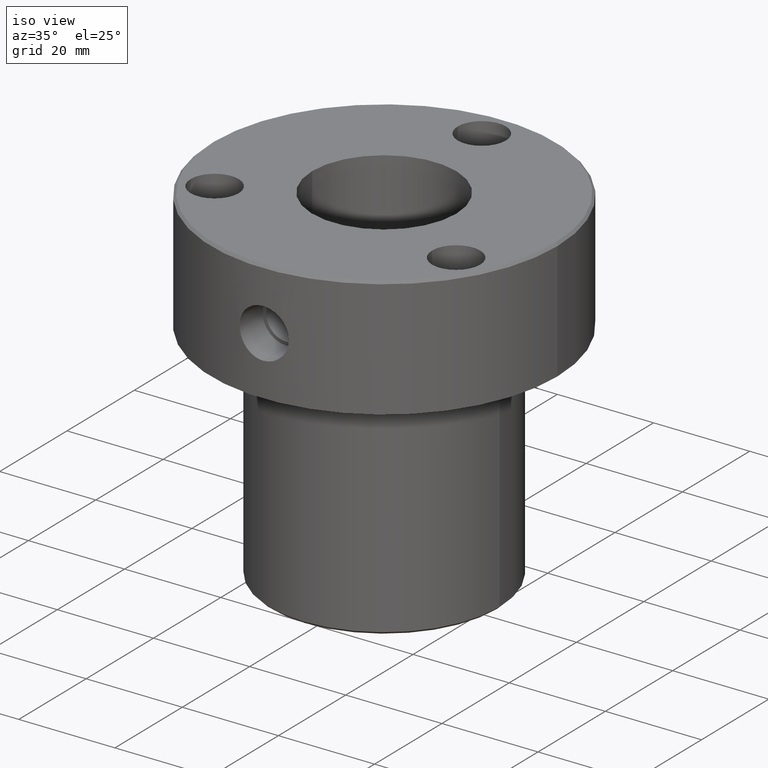
[diagram: clean part render]
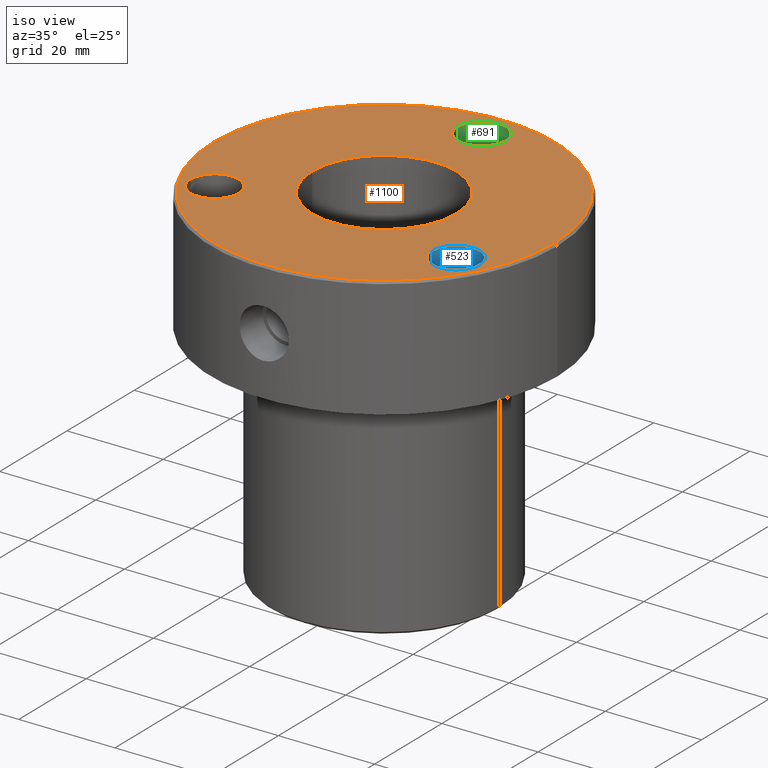
[diagram: same view with three faces highlighted in distinct colors, each labeled with its STEP entity id]
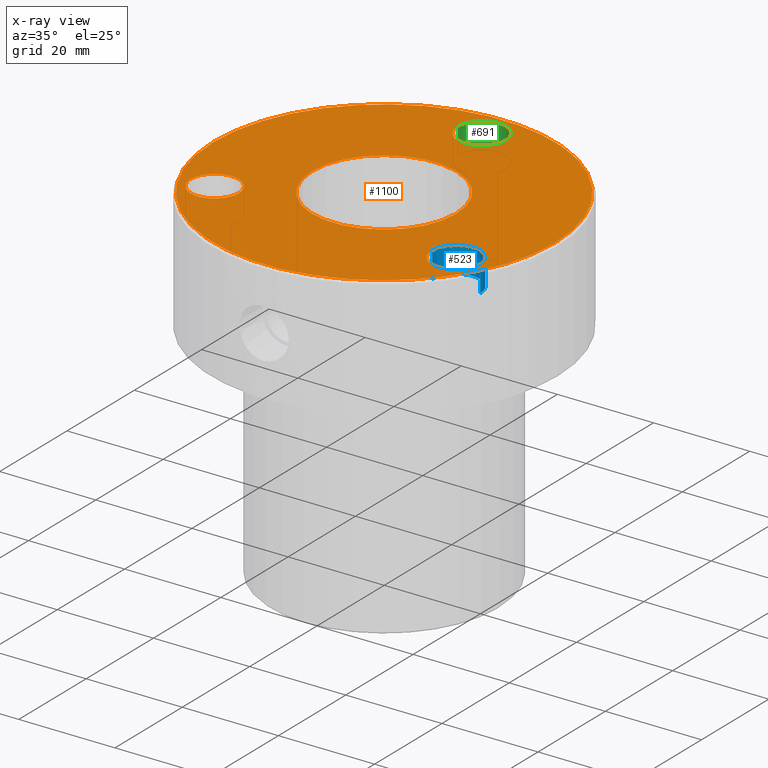
[diagram: x-ray of the same camera — body ghosted, the three highlighted faces saturated]
A machine part, iso view with three faces highlighted in distinct colors.
The next image is the same camera in x-ray (body ghosted, the three faces saturated) — at least one of them is partly hidden behind the body in this view.
Their STEP definitions:

[orange] entity #1100 — the highlighted planar face has unit normal (0, -0, 1).
#11 = AXIS2_PLACEMENT_3D ( 'NONE', #1087, #782, #1069 ) ;
#21 = DIRECTION ( 'NONE',  ( -0.000000000000000000, -0.000000000000000000, 1.000000000000000000 ) ) ;
#52 = ORIENTED_EDGE ( 'NONE', *, *, #95, .F. ) ;
#65 = CIRCLE ( 'NONE', #775, 5.000000000000000888 ) ;
#94 = EDGE_LOOP ( 'NONE', ( #359, #1245 ) ) ;
#95 = EDGE_CURVE ( 'NONE', #227, #241, #65, .T. ) ;
#105 = CARTESIAN_POINT ( 'NONE',  ( -25.11473670974875105, -14.49999999999994316, 0.000000000000000000 ) ) ;
#143 = CARTESIAN_POINT ( 'NONE',  ( -20.11473670974875105, -14.49999999999994316, 0.000000000000000000 ) ) ;
#145 = ORIENTED_EDGE ( 'NONE', *, *, #1178, .F. ) ;
#168 = VERTEX_POINT ( 'NONE', #555 ) ;
#172 = AXIS2_PLACEMENT_3D ( 'NONE', #513, #972, #410 ) ;
#183 = CARTESIAN_POINT ( 'NONE',  ( 0.000000000000000000, 0.000000000000000000, 0.000000000000000000 ) ) ;
#191 = CIRCLE ( 'NONE', #11, 15.00000000000000000 ) ;
#197 = CARTESIAN_POINT ( 'NONE',  ( 0.000000000000000000, 29.00000000000000000, 0.000000000000000000 ) ) ;
#215 = DIRECTION ( 'NONE',  ( -1.000000000000000000, 0.000000000000000000, 0.000000000000000000 ) ) ;
#218 = DIRECTION ( 'NONE',  ( -0.000000000000000000, -0.000000000000000000, 1.000000000000000000 ) ) ;
#227 = VERTEX_POINT ( 'NONE', #902 ) ;
#241 = VERTEX_POINT ( 'NONE', #1206 ) ;
#247 = CIRCLE ( 'NONE', #1143, 5.000000000000000888 ) ;
#248 = CARTESIAN_POINT ( 'NONE',  ( -30.11473670974875105, -14.49999999999994316, 0.000000000000000000 ) ) ;
#294 = AXIS2_PLACEMENT_3D ( 'NONE', #539, #727, #1218 ) ;
#306 = CARTESIAN_POINT ( 'NONE',  ( -5.000000000000000888, 29.00000000000000000, 0.000000000000000000 ) ) ;
#319 = CARTESIAN_POINT ( 'NONE',  ( 0.000000000000000000, 0.000000000000000000, 0.000000000000000000 ) ) ;
#325 = VERTEX_POINT ( 'NONE', #569 ) ;
#350 = CIRCLE ( 'NONE', #452, 15.00000000000000000 ) ;
#359 = ORIENTED_EDGE ( 'NONE', *, *, #819, .F. ) ;
#379 = ORIENTED_EDGE ( 'NONE', *, *, #925, .T. ) ;
#407 = DIRECTION ( 'NONE',  ( 1.000000000000000000, 0.000000000000000000, 0.000000000000000000 ) ) ;
#409 = CARTESIAN_POINT ( 'NONE',  ( 35.50000000000001421, 4.378112306951788646E-15, 0.000000000000000000 ) ) ;
#410 = DIRECTION ( 'NONE',  ( 1.000000000000000000, 0.000000000000000000, 0.000000000000000000 ) ) ;
#415 = AXIS2_PLACEMENT_3D ( 'NONE', #756, #457, #1138 ) ;
#425 = DIRECTION ( 'NONE',  ( 0.000000000000000000, -0.000000000000000000, 1.000000000000000000 ) ) ;
#452 = AXIS2_PLACEMENT_3D ( 'NONE', #886, #1056, #215 ) ;
#457 = DIRECTION ( 'NONE',  ( -0.000000000000000000, -0.000000000000000000, 1.000000000000000000 ) ) ;
#471 = VERTEX_POINT ( 'NONE', #409 ) ;
#479 = AXIS2_PLACEMENT_3D ( 'NONE', #197, #879, #1188 ) ;
#513 = CARTESIAN_POINT ( 'NONE',  ( 0.000000000000000000, 29.00000000000000000, 0.000000000000000000 ) ) ;
#535 = VERTEX_POINT ( 'NONE', #248 ) ;
#539 = CARTESIAN_POINT ( 'NONE',  ( 0.000000000000000000, 0.000000000000000000, 0.000000000000000000 ) ) ;
#555 = CARTESIAN_POINT ( 'NONE',  ( 5.000000000000000888, 29.00000000000000000, 0.000000000000000000 ) ) ;
#567 = EDGE_CURVE ( 'NONE', #1232, #471, #674, .T. ) ;
#569 = CARTESIAN_POINT ( 'NONE',  ( -15.00000000000000000, 0.000000000000000000, 0.000000000000000000 ) ) ;
#595 = DIRECTION ( 'NONE',  ( 1.000000000000000000, 0.000000000000000000, 0.000000000000000000 ) ) ;
#596 = CIRCLE ( 'NONE', #1164, 35.50000000000001421 ) ;
#603 = ORIENTED_EDGE ( 'NONE', *, *, #567, .T. ) ;
#622 = VERTEX_POINT ( 'NONE', #143 ) ;
#647 = EDGE_LOOP ( 'NONE', ( #799, #379 ) ) ;
#653 = CARTESIAN_POINT ( 'NONE',  ( 25.11473670974865868, -14.50000000000011013, 0.000000000000000000 ) ) ;
#674 = CIRCLE ( 'NONE', #294, 35.50000000000001421 ) ;
#677 = DIRECTION ( 'NONE',  ( -0.000000000000000000, -0.000000000000000000, 1.000000000000000000 ) ) ;
#689 = FACE_OUTER_BOUND ( 'NONE', #945, .T. ) ;
#696 = CARTESIAN_POINT ( 'NONE',  ( -25.11473670974875105, -14.49999999999994316, 0.000000000000000000 ) ) ;
#712 = CIRCLE ( 'NONE', #172, 5.000000000000000888 ) ;
#727 = DIRECTION ( 'NONE',  ( -0.000000000000000000, -0.000000000000000000, 1.000000000000000000 ) ) ;
#756 = CARTESIAN_POINT ( 'NONE',  ( 25.11473670974865868, -14.50000000000011013, 0.000000000000000000 ) ) ;
#774 = CIRCLE ( 'NONE', #415, 5.000000000000000888 ) ;
#775 = AXIS2_PLACEMENT_3D ( 'NONE', #653, #1254, #1053 ) ;
#778 = FACE_BOUND ( 'NONE', #647, .T. ) ;
#782 = DIRECTION ( 'NONE',  ( 0.000000000000000000, 0.000000000000000000, -1.000000000000000000 ) ) ;
#799 = ORIENTED_EDGE ( 'NONE', *, *, #1001, .T. ) ;
#804 = FACE_BOUND ( 'NONE', #94, .T. ) ;
#819 = EDGE_CURVE ( 'NONE', #168, #912, #1120, .T. ) ;
#845 = EDGE_LOOP ( 'NONE', ( #1122, #907 ) ) ;
#858 = EDGE_CURVE ( 'NONE', #535, #622, #247, .T. ) ;
#870 = AXIS2_PLACEMENT_3D ( 'NONE', #319, #425, #595 ) ;
#873 = FACE_BOUND ( 'NONE', #1065, .T. ) ;
#879 = DIRECTION ( 'NONE',  ( -0.000000000000000000, -0.000000000000000000, 1.000000000000000000 ) ) ;
#886 = CARTESIAN_POINT ( 'NONE',  ( 0.000000000000000000, 0.000000000000000000, 0.000000000000000000 ) ) ;
#896 = PLANE ( 'NONE',  #870 ) ;
#902 = CARTESIAN_POINT ( 'NONE',  ( 30.11473670974865868, -14.50000000000011013, 0.000000000000000000 ) ) ;
#907 = ORIENTED_EDGE ( 'NONE', *, *, #858, .F. ) ;
#912 = VERTEX_POINT ( 'NONE', #306 ) ;
#925 = EDGE_CURVE ( 'NONE', #1124, #325, #350, .T. ) ;
#945 = EDGE_LOOP ( 'NONE', ( #603, #1214 ) ) ;
#952 = AXIS2_PLACEMENT_3D ( 'NONE', #696, #218, #1186 ) ;
#972 = DIRECTION ( 'NONE',  ( -0.000000000000000000, -0.000000000000000000, 1.000000000000000000 ) ) ;
#1001 = EDGE_CURVE ( 'NONE', #325, #1124, #191, .T. ) ;
#1023 = EDGE_CURVE ( 'NONE', #912, #168, #712, .T. ) ;
#1031 = DIRECTION ( 'NONE',  ( 1.000000000000000000, 0.000000000000000000, 0.000000000000000000 ) ) ;
#1053 = DIRECTION ( 'NONE',  ( 1.000000000000000000, 0.000000000000000000, 0.000000000000000000 ) ) ;
#1056 = DIRECTION ( 'NONE',  ( 0.000000000000000000, 0.000000000000000000, -1.000000000000000000 ) ) ;
#1064 = CARTESIAN_POINT ( 'NONE',  ( 15.00000000000000000, 1.836970198721029589E-15, 0.000000000000000000 ) ) ;
#1065 = EDGE_LOOP ( 'NONE', ( #52, #145 ) ) ;
#1069 = DIRECTION ( 'NONE',  ( -1.000000000000000000, 0.000000000000000000, 0.000000000000000000 ) ) ;
#1080 = CARTESIAN_POINT ( 'NONE',  ( -35.50000000000001421, 0.000000000000000000, 0.000000000000000000 ) ) ;
#1087 = CARTESIAN_POINT ( 'NONE',  ( 0.000000000000000000, 0.000000000000000000, 0.000000000000000000 ) ) ;
#1100 = ADVANCED_FACE ( 'NONE', ( #1173, #873, #804, #778, #689 ), #896, .T. ) ;
#1117 = EDGE_CURVE ( 'NONE', #622, #535, #1184, .T. ) ;
#1120 = CIRCLE ( 'NONE', #479, 5.000000000000000888 ) ;
#1122 = ORIENTED_EDGE ( 'NONE', *, *, #1117, .F. ) ;
#1124 = VERTEX_POINT ( 'NONE', #1064 ) ;
#1138 = DIRECTION ( 'NONE',  ( 1.000000000000000000, 0.000000000000000000, 0.000000000000000000 ) ) ;
#1143 = AXIS2_PLACEMENT_3D ( 'NONE', #105, #21, #407 ) ;
#1144 = EDGE_CURVE ( 'NONE', #471, #1232, #596, .T. ) ;
#1164 = AXIS2_PLACEMENT_3D ( 'NONE', #183, #677, #1031 ) ;
#1173 = FACE_BOUND ( 'NONE', #845, .T. ) ;
#1178 = EDGE_CURVE ( 'NONE', #241, #227, #774, .T. ) ;
#1184 = CIRCLE ( 'NONE', #952, 5.000000000000000888 ) ;
#1186 = DIRECTION ( 'NONE',  ( 1.000000000000000000, 0.000000000000000000, 0.000000000000000000 ) ) ;
#1188 = DIRECTION ( 'NONE',  ( 1.000000000000000000, 0.000000000000000000, 0.000000000000000000 ) ) ;
#1206 = CARTESIAN_POINT ( 'NONE',  ( 20.11473670974865513, -14.50000000000011013, 0.000000000000000000 ) ) ;
#1214 = ORIENTED_EDGE ( 'NONE', *, *, #1144, .T. ) ;
#1218 = DIRECTION ( 'NONE',  ( 1.000000000000000000, 0.000000000000000000, 0.000000000000000000 ) ) ;
#1232 = VERTEX_POINT ( 'NONE', #1080 ) ;
#1245 = ORIENTED_EDGE ( 'NONE', *, *, #1023, .F. ) ;
#1254 = DIRECTION ( 'NONE',  ( -0.000000000000000000, -0.000000000000000000, 1.000000000000000000 ) ) ;

[blue] entity #523 — the highlighted cylindrical surface (edge-blend (fillet) strip) has radius 5 mm, axis along (-0, -0, 1).
#65 = CIRCLE ( 'NONE', #775, 5.000000000000000888 ) ;
#66 = VERTEX_POINT ( 'NONE', #928 ) ;
#91 = CARTESIAN_POINT ( 'NONE',  ( 20.11473670974865513, -14.50000000000011013, -5.400000000000000355 ) ) ;
#93 = DIRECTION ( 'NONE',  ( -0.000000000000000000, -0.000000000000000000, 1.000000000000000000 ) ) ;
#95 = EDGE_CURVE ( 'NONE', #227, #241, #65, .T. ) ;
#97 = EDGE_CURVE ( 'NONE', #66, #736, #396, .T. ) ;
#144 = ORIENTED_EDGE ( 'NONE', *, *, #97, .F. ) ;
#173 = DIRECTION ( 'NONE',  ( -0.000000000000000000, -0.000000000000000000, 1.000000000000000000 ) ) ;
#212 = DIRECTION ( 'NONE',  ( 1.000000000000000000, 0.000000000000000000, 0.000000000000000000 ) ) ;
#227 = VERTEX_POINT ( 'NONE', #902 ) ;
#241 = VERTEX_POINT ( 'NONE', #1206 ) ;
#288 = DIRECTION ( 'NONE',  ( -0.000000000000000000, -0.000000000000000000, 1.000000000000000000 ) ) ;
#300 = EDGE_CURVE ( 'NONE', #66, #227, #660, .T. ) ;
#304 = CARTESIAN_POINT ( 'NONE',  ( 25.11473670974865868, -14.50000000000011013, 0.000000000000000000 ) ) ;
#362 = EDGE_CURVE ( 'NONE', #736, #241, #762, .T. ) ;
#388 = EDGE_LOOP ( 'NONE', ( #806, #144, #749, #547 ) ) ;
#396 = CIRCLE ( 'NONE', #872, 5.000000000000000888 ) ;
#399 = DIRECTION ( 'NONE',  ( -0.000000000000000000, -0.000000000000000000, 1.000000000000000000 ) ) ;
#523 = ADVANCED_FACE ( 'NONE', ( #1168 ), #781, .F. ) ;
#547 = ORIENTED_EDGE ( 'NONE', *, *, #95, .T. ) ;
#564 = DIRECTION ( 'NONE',  ( 1.000000000000000000, 0.000000000000000000, 0.000000000000000000 ) ) ;
#581 = CARTESIAN_POINT ( 'NONE',  ( 30.11473670974865868, -14.50000000000011013, 0.000000000000000000 ) ) ;
#653 = CARTESIAN_POINT ( 'NONE',  ( 25.11473670974865868, -14.50000000000011013, 0.000000000000000000 ) ) ;
#655 = VECTOR ( 'NONE', #288, 1000.000000000000000 ) ;
#660 = LINE ( 'NONE', #581, #694 ) ;
#694 = VECTOR ( 'NONE', #93, 1000.000000000000000 ) ;
#736 = VERTEX_POINT ( 'NONE', #91 ) ;
#749 = ORIENTED_EDGE ( 'NONE', *, *, #300, .T. ) ;
#762 = LINE ( 'NONE', #1154, #655 ) ;
#775 = AXIS2_PLACEMENT_3D ( 'NONE', #653, #1254, #1053 ) ;
#781 = CYLINDRICAL_SURFACE ( 'NONE', #1201, 5.000000000000000888 ) ;
#806 = ORIENTED_EDGE ( 'NONE', *, *, #362, .F. ) ;
#872 = AXIS2_PLACEMENT_3D ( 'NONE', #1155, #173, #564 ) ;
#902 = CARTESIAN_POINT ( 'NONE',  ( 30.11473670974865868, -14.50000000000011013, 0.000000000000000000 ) ) ;
#928 = CARTESIAN_POINT ( 'NONE',  ( 30.11473670974865868, -14.50000000000011013, -5.400000000000000355 ) ) ;
#1053 = DIRECTION ( 'NONE',  ( 1.000000000000000000, 0.000000000000000000, 0.000000000000000000 ) ) ;
#1154 = CARTESIAN_POINT ( 'NONE',  ( 20.11473670974865513, -14.50000000000011013, 0.000000000000000000 ) ) ;
#1155 = CARTESIAN_POINT ( 'NONE',  ( 25.11473670974865868, -14.50000000000011013, -5.400000000000000355 ) ) ;
#1168 = FACE_OUTER_BOUND ( 'NONE', #388, .T. ) ;
#1201 = AXIS2_PLACEMENT_3D ( 'NONE', #304, #399, #212 ) ;
#1206 = CARTESIAN_POINT ( 'NONE',  ( 20.11473670974865513, -14.50000000000011013, 0.000000000000000000 ) ) ;
#1254 = DIRECTION ( 'NONE',  ( -0.000000000000000000, -0.000000000000000000, 1.000000000000000000 ) ) ;

[green] entity #691 — the highlighted cylindrical surface (edge-blend (fillet) strip) has radius 5 mm, axis along (-0, -0, 1).
#25 = VERTEX_POINT ( 'NONE', #938 ) ;
#88 = AXIS2_PLACEMENT_3D ( 'NONE', #358, #169, #285 ) ;
#111 = ORIENTED_EDGE ( 'NONE', *, *, #705, .F. ) ;
#168 = VERTEX_POINT ( 'NONE', #555 ) ;
#169 = DIRECTION ( 'NONE',  ( -0.000000000000000000, -0.000000000000000000, 1.000000000000000000 ) ) ;
#197 = CARTESIAN_POINT ( 'NONE',  ( 0.000000000000000000, 29.00000000000000000, 0.000000000000000000 ) ) ;
#285 = DIRECTION ( 'NONE',  ( 1.000000000000000000, 0.000000000000000000, 0.000000000000000000 ) ) ;
#289 = EDGE_LOOP ( 'NONE', ( #666, #111, #630, #1021 ) ) ;
#306 = CARTESIAN_POINT ( 'NONE',  ( -5.000000000000000888, 29.00000000000000000, 0.000000000000000000 ) ) ;
#358 = CARTESIAN_POINT ( 'NONE',  ( 0.000000000000000000, 29.00000000000000000, -5.400000000000000355 ) ) ;
#382 = DIRECTION ( 'NONE',  ( 1.000000000000000000, 0.000000000000000000, 0.000000000000000000 ) ) ;
#385 = CYLINDRICAL_SURFACE ( 'NONE', #934, 5.000000000000000000 ) ;
#394 = CIRCLE ( 'NONE', #88, 4.999999999999999112 ) ;
#479 = AXIS2_PLACEMENT_3D ( 'NONE', #197, #879, #1188 ) ;
#485 = CARTESIAN_POINT ( 'NONE',  ( -5.000000000000000000, 29.00000000000000000, 0.000000000000000000 ) ) ;
#555 = CARTESIAN_POINT ( 'NONE',  ( 5.000000000000000888, 29.00000000000000000, 0.000000000000000000 ) ) ;
#578 = CARTESIAN_POINT ( 'NONE',  ( 5.000000000000000000, 29.00000000000000000, 0.000000000000000000 ) ) ;
#630 = ORIENTED_EDGE ( 'NONE', *, *, #726, .T. ) ;
#666 = ORIENTED_EDGE ( 'NONE', *, *, #715, .F. ) ;
#691 = ADVANCED_FACE ( 'NONE', ( #854 ), #385, .F. ) ;
#705 = EDGE_CURVE ( 'NONE', #865, #25, #394, .T. ) ;
#715 = EDGE_CURVE ( 'NONE', #25, #912, #835, .T. ) ;
#726 = EDGE_CURVE ( 'NONE', #865, #168, #1145, .T. ) ;
#739 = CARTESIAN_POINT ( 'NONE',  ( 0.000000000000000000, 29.00000000000000000, 0.000000000000000000 ) ) ;
#764 = DIRECTION ( 'NONE',  ( -0.000000000000000000, -0.000000000000000000, 1.000000000000000000 ) ) ;
#785 = CARTESIAN_POINT ( 'NONE',  ( 4.999999999999999112, 29.00000000000000000, -5.400000000000000355 ) ) ;
#819 = EDGE_CURVE ( 'NONE', #168, #912, #1120, .T. ) ;
#835 = LINE ( 'NONE', #485, #1094 ) ;
#854 = FACE_OUTER_BOUND ( 'NONE', #289, .T. ) ;
#865 = VERTEX_POINT ( 'NONE', #785 ) ;
#879 = DIRECTION ( 'NONE',  ( -0.000000000000000000, -0.000000000000000000, 1.000000000000000000 ) ) ;
#911 = VECTOR ( 'NONE', #926, 1000.000000000000000 ) ;
#912 = VERTEX_POINT ( 'NONE', #306 ) ;
#926 = DIRECTION ( 'NONE',  ( -0.000000000000000000, -0.000000000000000000, 1.000000000000000000 ) ) ;
#934 = AXIS2_PLACEMENT_3D ( 'NONE', #739, #764, #382 ) ;
#938 = CARTESIAN_POINT ( 'NONE',  ( -4.999999999999999112, 29.00000000000000000, -5.400000000000000355 ) ) ;
#1021 = ORIENTED_EDGE ( 'NONE', *, *, #819, .T. ) ;
#1048 = DIRECTION ( 'NONE',  ( -0.000000000000000000, -0.000000000000000000, 1.000000000000000000 ) ) ;
#1094 = VECTOR ( 'NONE', #1048, 1000.000000000000000 ) ;
#1120 = CIRCLE ( 'NONE', #479, 5.000000000000000888 ) ;
#1145 = LINE ( 'NONE', #578, #911 ) ;
#1188 = DIRECTION ( 'NONE',  ( 1.000000000000000000, 0.000000000000000000, 0.000000000000000000 ) ) ;